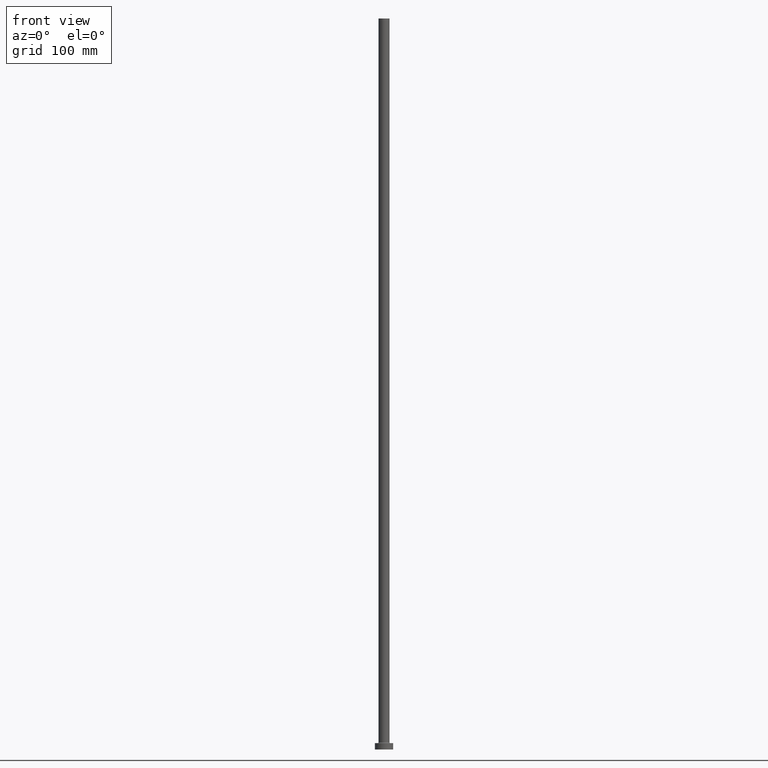
[diagram: clean part render]
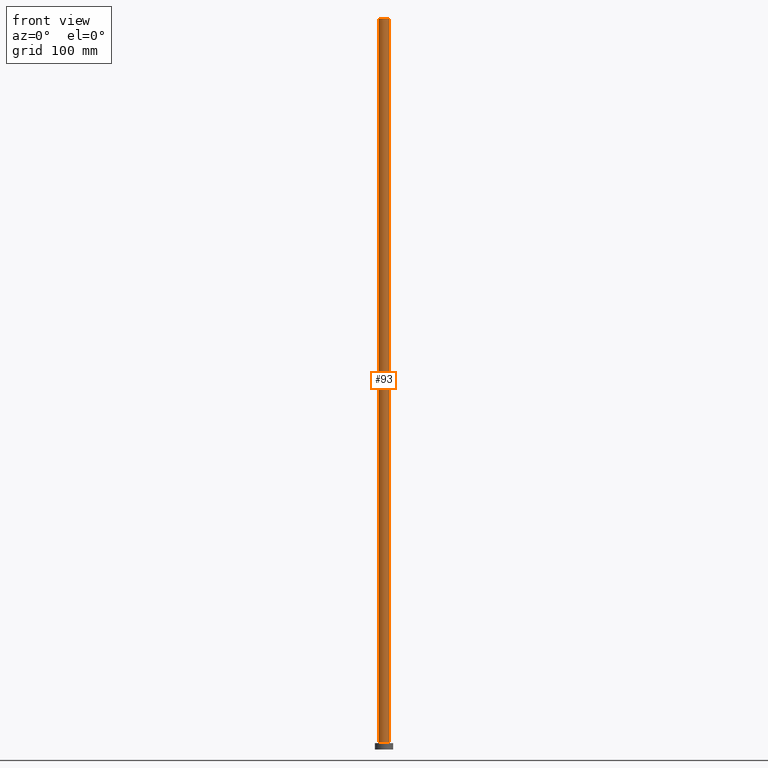
[diagram: same view with one face highlighted and labeled with its STEP entity id]
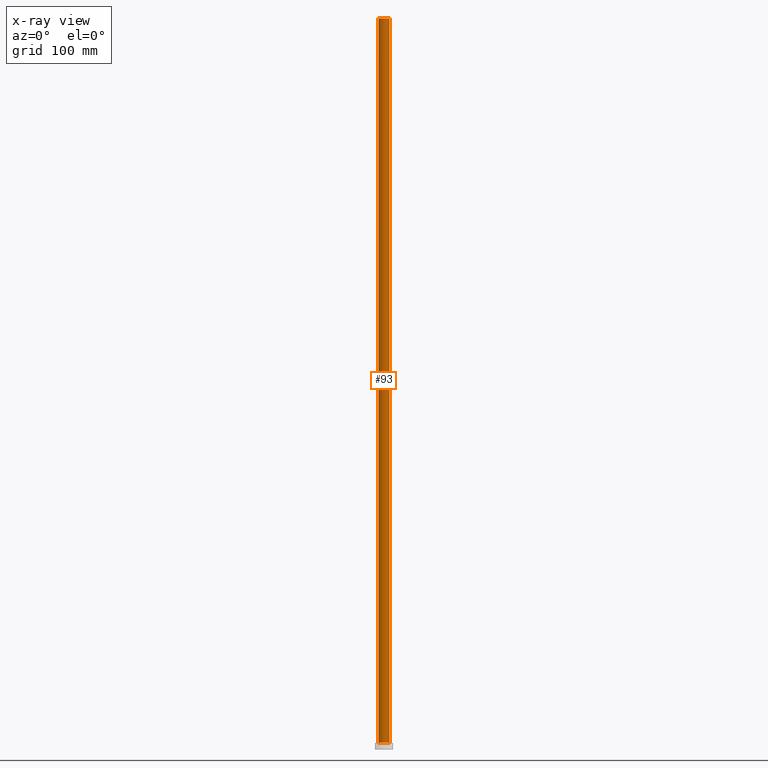
[diagram: x-ray of the same camera — body ghosted, the highlighted face saturated]
A machine part, front view. The second image highlights one B-rep face of the part: STEP entity #93.
The next image is the same camera in x-ray: the body ghosted, the highlighted face saturated — about 0% of this face is hidden behind the body in this view.
In plain terms, the highlighted cylindrical surface (edge-blend (fillet) strip) has radius 6 mm, axis along (-0, -0, -1).
Its self-contained STEP definition (entity closure, byte-faithful):
#10 = DIRECTION ( 'NONE',  ( -0.000000000000000000, -0.000000000000000000, -1.000000000000000000 ) ) ;
#13 = CYLINDRICAL_SURFACE ( 'NONE', #311, 6.000000000000000888 ) ;
#32 = DIRECTION ( 'NONE',  ( -0.000000000000000000, -0.000000000000000000, -1.000000000000000000 ) ) ;
#51 = CARTESIAN_POINT ( 'NONE',  ( 0.000000000000000000, 0.000000000000000000, 800.0000000000000000 ) ) ;
#63 = CARTESIAN_POINT ( 'NONE',  ( 0.000000000000000000, 0.000000000000000000, 7.700000000000040146 ) ) ;
#73 = DIRECTION ( 'NONE',  ( 0.000000000000000000, 0.000000000000000000, 1.000000000000000000 ) ) ;
#81 = VERTEX_POINT ( 'NONE', #89 ) ;
#89 = CARTESIAN_POINT ( 'NONE',  ( -6.000000000000000888, 0.000000000000000000, 7.700000000000040146 ) ) ;
#93 = ADVANCED_FACE ( 'NONE', ( #192 ), #13, .T. ) ;
#99 = AXIS2_PLACEMENT_3D ( 'NONE', #106, #73, #355 ) ;
#105 = ORIENTED_EDGE ( 'NONE', *, *, #439, .F. ) ;
#106 = CARTESIAN_POINT ( 'NONE',  ( 0.000000000000000000, 0.000000000000000000, 800.0000000000000000 ) ) ;
#107 = LINE ( 'NONE', #213, #358 ) ;
#135 = CARTESIAN_POINT ( 'NONE',  ( 6.000000000000000888, 7.347880794884120722E-16, 800.0000000000000000 ) ) ;
#137 = VERTEX_POINT ( 'NONE', #234 ) ;
#161 = ORIENTED_EDGE ( 'NONE', *, *, #295, .F. ) ;
#167 = CIRCLE ( 'NONE', #347, 6.000000000000000888 ) ;
#170 = CARTESIAN_POINT ( 'NONE',  ( -6.000000000000000888, 0.000000000000000000, 800.0000000000000000 ) ) ;
#189 = EDGE_LOOP ( 'NONE', ( #161, #105, #457, #312 ) ) ;
#192 = FACE_OUTER_BOUND ( 'NONE', #189, .T. ) ;
#198 = EDGE_CURVE ( 'NONE', #81, #137, #167, .T. ) ;
#201 = DIRECTION ( 'NONE',  ( 0.000000000000000000, 0.000000000000000000, 1.000000000000000000 ) ) ;
#213 = CARTESIAN_POINT ( 'NONE',  ( -6.000000000000000888, 0.000000000000000000, 800.0000000000000000 ) ) ;
#226 = VERTEX_POINT ( 'NONE', #170 ) ;
#234 = CARTESIAN_POINT ( 'NONE',  ( 6.000000000000000888, 7.347880794884120722E-16, 7.700000000000040146 ) ) ;
#244 = VERTEX_POINT ( 'NONE', #135 ) ;
#248 = DIRECTION ( 'NONE',  ( -0.000000000000000000, -0.000000000000000000, -1.000000000000000000 ) ) ;
#279 = CARTESIAN_POINT ( 'NONE',  ( 6.000000000000000888, 7.347880794884120722E-16, 800.0000000000000000 ) ) ;
#295 = EDGE_CURVE ( 'NONE', #244, #137, #350, .T. ) ;
#311 = AXIS2_PLACEMENT_3D ( 'NONE', #51, #10, #333 ) ;
#312 = ORIENTED_EDGE ( 'NONE', *, *, #198, .T. ) ;
#333 = DIRECTION ( 'NONE',  ( -1.000000000000000000, 0.000000000000000000, 0.000000000000000000 ) ) ;
#344 = DIRECTION ( 'NONE',  ( 1.000000000000000000, 0.000000000000000000, 0.000000000000000000 ) ) ;
#347 = AXIS2_PLACEMENT_3D ( 'NONE', #63, #201, #344 ) ;
#350 = LINE ( 'NONE', #279, #396 ) ;
#355 = DIRECTION ( 'NONE',  ( 1.000000000000000000, 0.000000000000000000, 0.000000000000000000 ) ) ;
#358 = VECTOR ( 'NONE', #248, 1000.000000000000000 ) ;
#385 = EDGE_CURVE ( 'NONE', #226, #81, #107, .T. ) ;
#396 = VECTOR ( 'NONE', #32, 1000.000000000000000 ) ;
#436 = CIRCLE ( 'NONE', #99, 6.000000000000000888 ) ;
#439 = EDGE_CURVE ( 'NONE', #226, #244, #436, .T. ) ;
#457 = ORIENTED_EDGE ( 'NONE', *, *, #385, .T. ) ;